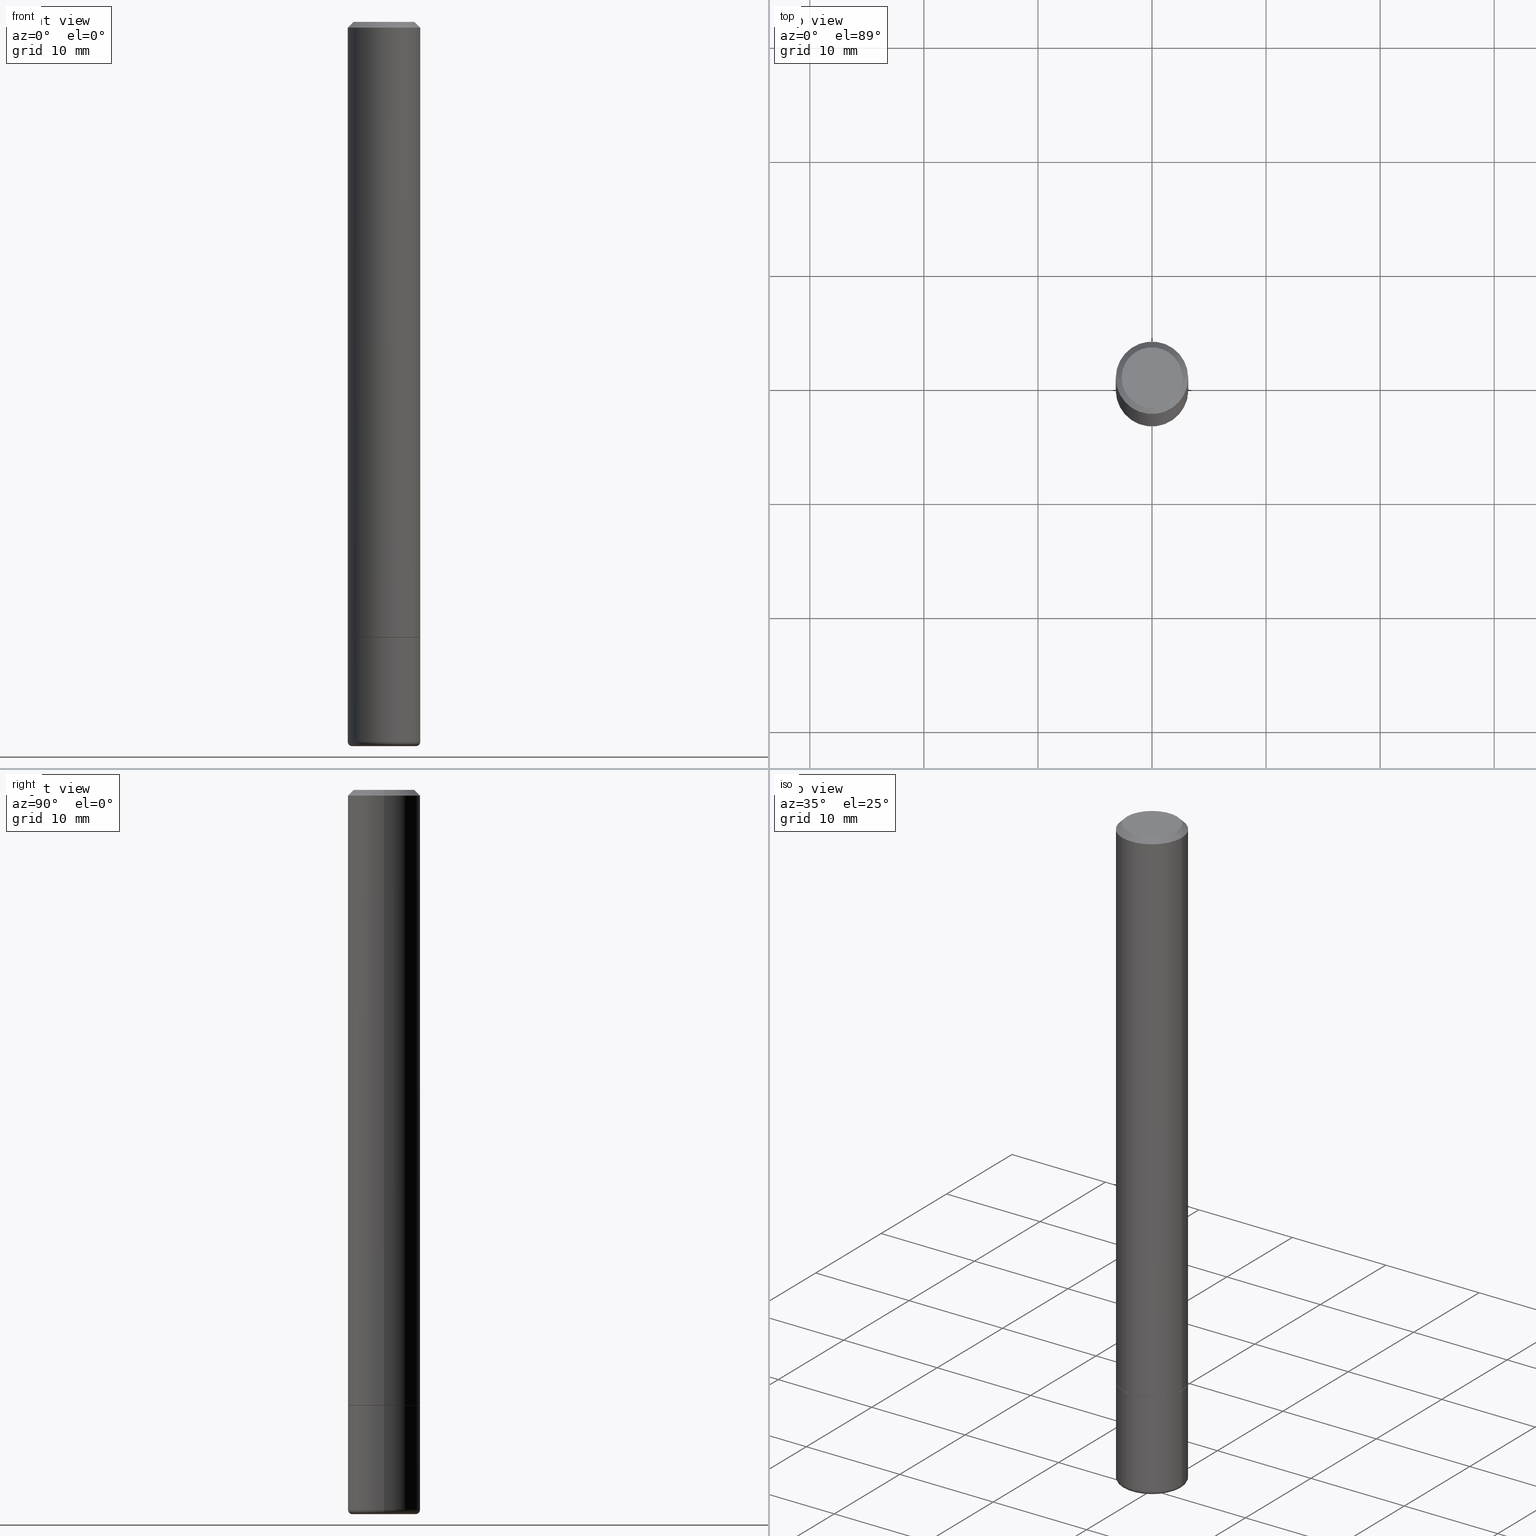
[diagram: canonical four-view strip — front | top / right | iso, engineering-drawing reading convention]
A machine part, canonical four-view strip (front | top / right | iso — engineering-drawing reading convention). The complete STEP part file that produces these views, byte-faithful:
ISO-10303-21;
HEADER;
FILE_DESCRIPTION (( 'STEP AP203' ),
    '1' );
FILE_NAME ('35666.STEP',
    '2022-11-02T20:36:57',
    ( '' ),
    ( '' ),
    'SwSTEP 2.0',
    'SolidWorks 2022',
    '' );
FILE_SCHEMA (( 'CONFIG_CONTROL_DESIGN' ));
ENDSEC;

DATA;
#1 = LINE ( 'NONE', #105, #276 ) ;
#2 = CARTESIAN_POINT ( 'NONE',  ( 4.890937612370295054E-31, -6.982962677686322424E-17, -0.02000000000000009062 ) ) ;
#3 = EDGE_CURVE ( 'NONE', #170, #50, #188, .T. ) ;
#4 = FACE_OUTER_BOUND ( 'NONE', #64, .T. ) ;
#5 = AXIS2_PLACEMENT_3D ( 'NONE', #30, #182, #252 ) ;
#6 = CARTESIAN_POINT ( 'NONE',  ( 0.09653660196752465728, -9.390586274395309019E-15, -2.499883649035179900 ) ) ;
#7 = CC_DESIGN_DATE_AND_TIME_ASSIGNMENT ( #355, #129, ( #475 ) ) ;
#8 = ORIENTED_EDGE ( 'NONE', *, *, #52, .T. ) ;
#9 = DIRECTION ( 'NONE',  ( -0.9993908270190957621, 6.856857904024556470E-15, -0.03489949670250108021 ) ) ;
#10 = CARTESIAN_POINT ( 'NONE',  ( 0.09653660196752465728, -9.390586274395309019E-15, -2.499883649035179900 ) ) ;
#11 = ORIENTED_EDGE ( 'NONE', *, *, #211, .T. ) ;
#12 = DIRECTION ( 'NONE',  ( 1.000000000000000000, -6.982962677686267499E-15, 0.000000000000000000 ) ) ;
#13 = PRODUCT_DEFINITION_SHAPE ( 'NONE', 'NONE',  #475 ) ;
#14 = TOROIDAL_SURFACE ( 'NONE', #199, 0.1100000000000001948, 0.01499999999999986934 ) ;
#15 = AXIS2_PLACEMENT_3D ( 'NONE', #347, #381, #89 ) ;
#16 = ORIENTED_EDGE ( 'NONE', *, *, #336, .T. ) ;
#17 = ORIENTED_EDGE ( 'NONE', *, *, #394, .F. ) ;
#18 = PERSON_AND_ORGANIZATION ( #41, #314 ) ;
#19 = DIRECTION ( 'NONE',  ( -2.445468806185136597E-29, 3.491481338843145583E-15, 1.000000000000000000 ) ) ;
#20 = PERSON_AND_ORGANIZATION_ROLE ( 'design_supplier' ) ;
#21 = CIRCLE ( 'NONE', #436, 0.1249999999999993477 ) ;
#22 = EDGE_LOOP ( 'NONE', ( #412, #219 ) ) ;
#23 = AXIS2_PLACEMENT_3D ( 'NONE', #207, #198, #470 ) ;
#24 = APPROVAL_DATE_TIME ( #26, #255 ) ;
#25 = APPROVAL_PERSON_ORGANIZATION ( #443, #426, #96 ) ;
#26 = DATE_AND_TIME ( #127, #320 ) ;
#27 = ORIENTED_EDGE ( 'NONE', *, *, #78, .T. ) ;
#28 = ORIENTED_EDGE ( 'NONE', *, *, #78, .F. ) ;
#29 = VECTOR ( 'NONE', #360, 39.37007874015748854 ) ;
#30 = CARTESIAN_POINT ( 'NONE',  ( 5.196621213143416389E-29, -7.419397845041685201E-15, -2.125000000000000444 ) ) ;
#31 = CARTESIAN_POINT ( 'NONE',  ( 5.194175744337230786E-29, -7.415906363702842194E-15, -2.124000000000000554 ) ) ;
#32 = VECTOR ( 'NONE', #9, 39.37007874015748143 ) ;
#33 = DIRECTION ( 'NONE',  ( 1.000000000000000000, -6.982962677686266711E-15, 4.883557194083113462E-29 ) ) ;
#34 = CARTESIAN_POINT ( 'NONE',  ( -0.1098691019675246544, -7.961491508637733109E-15, -2.500000000000000000 ) ) ;
#35 = CARTESIAN_POINT ( 'NONE',  ( -0.1249999999999993477, 8.030407079339155047E-16, -0.02000000000000009062 ) ) ;
#36 = LINE ( 'NONE', #185, #266 ) ;
#37 = FACE_OUTER_BOUND ( 'NONE', #390, .T. ) ;
#38 = DIRECTION ( 'NONE',  ( -2.445468806185136597E-29, 3.491481338843145583E-15, 1.000000000000000000 ) ) ;
#39 = AXIS2_PLACEMENT_3D ( 'NONE', #233, #193, #42 ) ;
#40 = CYLINDRICAL_SURFACE ( 'NONE', #231, 0.1249999999999994865 ) ;
#41 = PERSON ( 'UNSPECIFIED', 'UNSPECIFIED', 'UNSPECIFIED', ('UNSPECIFIED'), ('UNSPECIFIED'), ('UNSPECIFIED') ) ;
#42 = DIRECTION ( 'NONE',  ( -1.000000000000000000, 6.982962677686265922E-15, 0.000000000000000000 ) ) ;
#43 = CARTESIAN_POINT ( 'NONE',  ( -0.1249999999999994865, 8.881784197001215839E-16, -6.148668862818606303E-30 ) ) ;
#44 = EDGE_CURVE ( 'NONE', #324, #134, #21, .T. ) ;
#45 = AXIS2_PLACEMENT_3D ( 'NONE', #220, #409, #229 ) ;
#46 = ORIENTED_EDGE ( 'NONE', *, *, #176, .F. ) ;
#47 = CARTESIAN_POINT ( 'NONE',  ( 0.1098691019675246544, -9.482460101173023392E-15, -2.500000000000000000 ) ) ;
#48 = CARTESIAN_POINT ( 'NONE',  ( 5.196621213143416389E-29, -7.419397845041685201E-15, -2.125000000000000444 ) ) ;
#49 = DIRECTION ( 'NONE',  ( -1.000000000000000000, 6.982962677686267499E-15, 0.000000000000000000 ) ) ;
#50 = VERTEX_POINT ( 'NONE', #416 ) ;
#51 =( NAMED_UNIT ( * ) PLANE_ANGLE_UNIT ( ) SI_UNIT ( $, .RADIAN. ) );
#52 = EDGE_CURVE ( 'NONE', #61, #50, #186, .T. ) ;
#53 = ORIENTED_EDGE ( 'NONE', *, *, #328, .F. ) ;
#54 = ORIENTED_EDGE ( 'NONE', *, *, #455, .T. ) ;
#55 = COORDINATED_UNIVERSAL_TIME_OFFSET ( 5, 0, .BEHIND. ) ;
#56 = DIRECTION ( 'NONE',  ( -2.445468806185136597E-29, 3.491481338843145583E-15, 1.000000000000000000 ) ) ;
#57 = CARTESIAN_POINT ( 'NONE',  ( 0.000000000000000000, 0.000000000000000000, 0.000000000000000000 ) ) ;
#58 = ORIENTED_EDGE ( 'NONE', *, *, #243, .T. ) ;
#59 = APPROVAL_ROLE ( '' ) ;
#60 = ORIENTED_EDGE ( 'NONE', *, *, #328, .T. ) ;
#61 = VERTEX_POINT ( 'NONE', #228 ) ;
#62 = AXIS2_PLACEMENT_3D ( 'NONE', #116, #152, #12 ) ;
#63 = COORDINATED_UNIVERSAL_TIME_OFFSET ( 5, 0, .BEHIND. ) ;
#64 = EDGE_LOOP ( 'NONE', ( #330, #281, #93, #17 ) ) ;
#65 = PERSON_AND_ORGANIZATION ( #41, #314 ) ;
#66 = DIRECTION ( 'NONE',  ( 1.000000000000000000, -6.982962677686265922E-15, 4.876176775795935793E-29 ) ) ;
#67 = ORIENTED_EDGE ( 'NONE', *, *, #482, .F. ) ;
#68 = CARTESIAN_POINT ( 'NONE',  ( 5.194175744337230786E-29, -7.415906363702842194E-15, -2.124000000000000554 ) ) ;
#69 = DIRECTION ( 'NONE',  ( -2.445468806185136877E-29, 3.491481338843145188E-15, 1.000000000000000000 ) ) ;
#70 = FACE_OUTER_BOUND ( 'NONE', #130, .T. ) ;
#71 = CONICAL_SURFACE ( 'NONE', #62, 0.1239999999999996244, 0.7853981633974141952 ) ;
#72 = DIRECTION ( 'NONE',  ( 2.445468806185136597E-29, -3.491481338843145583E-15, -1.000000000000000000 ) ) ;
#73 = DIRECTION ( 'NONE',  ( 1.000000000000000000, -6.982962677686266711E-15, 4.876176775795935793E-29 ) ) ;
#74 = ADVANCED_FACE ( 'NONE', ( #37 ), #40, .T. ) ;
#75 = FACE_OUTER_BOUND ( 'NONE', #387, .T. ) ;
#76 = CIRCLE ( 'NONE', #215, 0.1249999999999993477 ) ;
#77 = DIRECTION ( 'NONE',  ( 1.000000000000000000, -6.982962677686267499E-15, 0.000000000000000000 ) ) ;
#78 = EDGE_CURVE ( 'NONE', #481, #170, #112, .T. ) ;
#79 = ORIENTED_EDGE ( 'NONE', *, *, #44, .T. ) ;
#80 = DIRECTION ( 'NONE',  ( -2.445468806185136597E-29, 3.491481338843145583E-15, 1.000000000000000000 ) ) ;
#81 = VECTOR ( 'NONE', #453, 39.37007874015748143 ) ;
#82 = DIRECTION ( 'NONE',  ( -6.982962677686266711E-15, -1.000000000000000000, 3.491481338843145583E-15 ) ) ;
#83 = CIRCLE ( 'NONE', #382, 0.01499999999999987454 ) ;
#84 = LOCAL_TIME ( 16, 36, 57.00000000000000000, #217 ) ;
#85 = ORIENTED_EDGE ( 'NONE', *, *, #3, .F. ) ;
#86 = ORIENTED_EDGE ( 'NONE', *, *, #3, .T. ) ;
#87 = PLANE ( 'NONE',  #260 ) ;
#88 = ORIENTED_EDGE ( 'NONE', *, *, #438, .F. ) ;
#89 = DIRECTION ( 'NONE',  ( 1.000000000000000000, -6.982962677686261977E-15, 0.000000000000000000 ) ) ;
#90 = APPROVAL_DATE_TIME ( #166, #426 ) ;
#91 = EDGE_CURVE ( 'NONE', #155, #324, #372, .T. ) ;
#92 = CIRCLE ( 'NONE', #377, 0.1239999999999996244 ) ;
#93 = ORIENTED_EDGE ( 'NONE', *, *, #272, .T. ) ;
#94 = ORIENTED_EDGE ( 'NONE', *, *, #438, .T. ) ;
#95 = ORIENTED_EDGE ( 'NONE', *, *, #206, .T. ) ;
#96 = APPROVAL_ROLE ( '' ) ;
#97 = COORDINATED_UNIVERSAL_TIME_OFFSET ( 5, 0, .BEHIND. ) ;
#98 = AXIS2_PLACEMENT_3D ( 'NONE', #48, #269, #311 ) ;
#99 = FACE_OUTER_BOUND ( 'NONE', #114, .T. ) ;
#100 = VERTEX_POINT ( 'NONE', #402 ) ;
#101 = DIRECTION ( 'NONE',  ( -2.445468806185136597E-29, 3.491481338843145583E-15, 1.000000000000000000 ) ) ;
#102 = DIRECTION ( 'NONE',  ( 1.000000000000000000, -6.982962677686269077E-15, 0.000000000000000000 ) ) ;
#103 = ORIENTED_EDGE ( 'NONE', *, *, #448, .T. ) ;
#104 = TOROIDAL_SURFACE ( 'NONE', #398, 0.1100000000000001948, 0.01499999999999986934 ) ;
#105 = CARTESIAN_POINT ( 'NONE',  ( 0.1239999999999996244, -8.285285217074779370E-15, -2.125000000000000444 ) ) ;
#106 = CARTESIAN_POINT ( 'NONE',  ( 0.000000000000000000, 0.000000000000000000, 0.000000000000000000 ) ) ;
#107 = ADVANCED_FACE ( 'NONE', ( #451 ), #14, .T. ) ;
#108 = CARTESIAN_POINT ( 'NONE',  ( 1.043851414335219781E-45, -1.490343170380447145E-31, -4.268512490100411279E-17 ) ) ;
#109 = CARTESIAN_POINT ( 'NONE',  ( 0.1100000000000001948, -9.444459015744370548E-15, -2.485000571154037718 ) ) ;
#110 = FACE_OUTER_BOUND ( 'NONE', #284, .T. ) ;
#111 = PRODUCT ( '35666', '35666', '', ( #325 ) ) ;
#112 = LINE ( 'NONE', #221, #484 ) ;
#113 = ORIENTED_EDGE ( 'NONE', *, *, #448, .F. ) ;
#114 = EDGE_LOOP ( 'NONE', ( #399, #16, #192, #316 ) ) ;
#115 = CARTESIAN_POINT ( 'NONE',  ( 1.043851414335219781E-45, -1.490343170380447145E-31, -4.268512490100411279E-17 ) ) ;
#116 = CARTESIAN_POINT ( 'NONE',  ( 5.196621213143416389E-29, -7.419397845041685201E-15, -2.125000000000000444 ) ) ;
#117 = ADVANCED_FACE ( 'NONE', ( #329 ), #133, .F. ) ;
#118 = DIRECTION ( 'NONE',  ( 2.438088387897960049E-29, -3.491481338843145188E-15, -1.000000000000000000 ) ) ;
#119 = ADVANCED_BREP_SHAPE_REPRESENTATION ( '35666', ( #406, #239, #466 ), #430 ) ;
#120 = PERSON_AND_ORGANIZATION ( #41, #314 ) ;
#121 = EDGE_LOOP ( 'NONE', ( #214, #395 ) ) ;
#122 = DIRECTION ( 'NONE',  ( 1.000000000000000000, 0.000000000000000000, 0.000000000000000000 ) ) ;
#123 = UNCERTAINTY_MEASURE_WITH_UNIT (LENGTH_MEASURE( 1.000000000000000082E-05 ), #428, 'distance_accuracy_value', 'NONE');
#124 = PRODUCT_RELATED_PRODUCT_CATEGORY ( 'detail', '', ( #111 ) ) ;
#125 = CONICAL_SURFACE ( 'NONE', #208, 0.1098691019675246544, 1.562069680534929894 ) ;
#126 = AXIS2_PLACEMENT_3D ( 'NONE', #375, #490, #299 ) ;
#127 = CALENDAR_DATE ( 2022, 2, 11 ) ;
#128 = ORIENTED_EDGE ( 'NONE', *, *, #405, .T. ) ;
#129 = DATE_TIME_ROLE ( 'creation_date' ) ;
#130 = EDGE_LOOP ( 'NONE', ( #28, #11, #8, #85 ) ) ;
#131 = CALENDAR_DATE ( 2022, 2, 11 ) ;
#132 = DIRECTION ( 'NONE',  ( -0.7071067811865465735, 2.468850131082246805E-15, -0.7071067811865484609 ) ) ;
#133 = CONICAL_SURFACE ( 'NONE', #419, 0.1098691019675246544, 1.562069680534929894 ) ;
#134 = VERTEX_POINT ( 'NONE', #486 ) ;
#135 = VECTOR ( 'NONE', #184, 39.37007874015748854 ) ;
#136 = APPROVAL_PERSON_ORGANIZATION ( #18, #386, #59 ) ;
#137 = CARTESIAN_POINT ( 'NONE',  ( 0.1249999999999996253, -8.288776698413623955E-15, -2.124000000000000554 ) ) ;
#138 = FACE_OUTER_BOUND ( 'NONE', #348, .T. ) ;
#139 = ADVANCED_FACE ( 'NONE', ( #138 ), #125, .F. ) ;
#140 = DIRECTION ( 'NONE',  ( -2.445468806185136597E-29, 3.491481338843145583E-15, 1.000000000000000000 ) ) ;
#141 = ORIENTED_EDGE ( 'NONE', *, *, #171, .T. ) ;
#142 = CARTESIAN_POINT ( 'NONE',  ( 5.196621213143416389E-29, -7.419397845041685201E-15, -2.125000000000000444 ) ) ;
#143 = AXIS2_PLACEMENT_3D ( 'NONE', #283, #56, #168 ) ;
#144 = CARTESIAN_POINT ( 'NONE',  ( -0.1100000000000001948, -7.894736111862769680E-15, -2.485000571154037718 ) ) ;
#145 = PRODUCT_DEFINITION_FORMATION_WITH_SPECIFIED_SOURCE ( 'ANY', '', #111, .NOT_KNOWN. ) ;
#146 = DIRECTION ( 'NONE',  ( -2.445468806185136877E-29, 3.491481338843145188E-15, 1.000000000000000000 ) ) ;
#147 = VERTEX_POINT ( 'NONE', #162 ) ;
#148 = CARTESIAN_POINT ( 'NONE',  ( 0.1098691019675246544, -9.495915185577995199E-15, -2.500000000000000000 ) ) ;
#149 = CARTESIAN_POINT ( 'NONE',  ( -0.09653660196752465728, -8.054185621315559695E-15, -2.499883649035179900 ) ) ;
#150 = EDGE_CURVE ( 'NONE', #358, #134, #36, .T. ) ;
#151 = ORIENTED_EDGE ( 'NONE', *, *, #246, .F. ) ;
#152 = DIRECTION ( 'NONE',  ( -2.445468806185136597E-29, 3.491481338843145583E-15, 1.000000000000000000 ) ) ;
#153 = CLOSED_SHELL ( 'NONE', ( #226, #74, #489, #297, #169, #456, #423, #413 ) ) ;
#154 = AXIS2_PLACEMENT_3D ( 'NONE', #108, #227, #264 ) ;
#155 = VERTEX_POINT ( 'NONE', #335 ) ;
#156 = PLANE ( 'NONE',  #338 ) ;
#157 = VERTEX_POINT ( 'NONE', #263 ) ;
#158 = DIRECTION ( 'NONE',  ( 2.438088387897960049E-29, -3.491481338843145188E-15, -1.000000000000000000 ) ) ;
#159 = PLANE ( 'NONE',  #98 ) ;
#160 = VECTOR ( 'NONE', #132, 39.37007874015748143 ) ;
#161 = CIRCLE ( 'NONE', #15, 0.09653660196752465728 ) ;
#162 = CARTESIAN_POINT ( 'NONE',  ( 0.1049999999999993577, -8.238720831321533257E-16, -4.268512490099867088E-17 ) ) ;
#163 = ORIENTED_EDGE ( 'NONE', *, *, #171, .F. ) ;
#164 = DESIGN_CONTEXT ( 'detailed design', #213, 'design' ) ;
#165 = ORIENTED_EDGE ( 'NONE', *, *, #206, .F. ) ;
#166 = DATE_AND_TIME ( #439, #210 ) ;
#167 = CARTESIAN_POINT ( 'NONE',  ( 6.076991380109446545E-29, -8.676333121198880578E-15, -2.485000571154037718 ) ) ;
#168 = DIRECTION ( 'NONE',  ( 1.000000000000000000, -6.982962677686269077E-15, 0.000000000000000000 ) ) ;
#169 = ADVANCED_FACE ( 'NONE', ( #340 ), #230, .T. ) ;
#170 = VERTEX_POINT ( 'NONE', #450 ) ;
#171 = EDGE_CURVE ( 'NONE', #147, #134, #368, .T. ) ;
#172 = APPROVAL_STATUS ( 'not_yet_approved' ) ;
#173 = CONICAL_SURFACE ( 'NONE', #23, 0.1249999999999993477, 0.7853981633974469467 ) ;
#174 = ORIENTED_EDGE ( 'NONE', *, *, #246, .T. ) ;
#175 = PERSON_AND_ORGANIZATION_ROLE ( 'design_owner' ) ;
#176 = EDGE_CURVE ( 'NONE', #346, #488, #251, .T. ) ;
#177 = DIRECTION ( 'NONE',  ( -1.000000000000000000, 6.982962677686267499E-15, 0.000000000000000000 ) ) ;
#178 = ORIENTED_EDGE ( 'NONE', *, *, #432, .F. ) ;
#179 = CC_DESIGN_DATE_AND_TIME_ASSIGNMENT ( #440, #317, ( #478 ) ) ;
#180 = DIRECTION ( 'NONE',  ( -2.445468806185136597E-29, 3.491481338843145583E-15, 1.000000000000000000 ) ) ;
#181 = ORIENTED_EDGE ( 'NONE', *, *, #44, .F. ) ;
#182 = DIRECTION ( 'NONE',  ( -2.445468806185136597E-29, 3.491481338843145583E-15, 1.000000000000000000 ) ) ;
#183 = DIRECTION ( 'NONE',  ( -1.000000000000000000, 6.982962677686261977E-15, 0.000000000000000000 ) ) ;
#184 = DIRECTION ( 'NONE',  ( -0.9999619230641714207, 6.952228252019186602E-15, -0.008726535498369011531 ) ) ;
#185 = CARTESIAN_POINT ( 'NONE',  ( 0.1249999999999994865, -8.728703347107796903E-16, 6.095220969744894518E-30 ) ) ;
#186 = LINE ( 'NONE', #408, #81 ) ;
#187 = CARTESIAN_POINT ( 'NONE',  ( 6.113672015462842613E-29, -8.728703347107864943E-15, -2.500000000000000000 ) ) ;
#188 = CIRCLE ( 'NONE', #143, 0.1249999999999996253 ) ;
#189 = AXIS2_PLACEMENT_3D ( 'NONE', #31, #454, #102 ) ;
#190 = CARTESIAN_POINT ( 'NONE',  ( 6.076991380109446545E-29, -8.676333121198880578E-15, -2.485000571154037718 ) ) ;
#191 = CARTESIAN_POINT ( 'NONE',  ( 0.000000000000000000, 0.000000000000000000, 0.000000000000000000 ) ) ;
#192 = ORIENTED_EDGE ( 'NONE', *, *, #389, .F. ) ;
#193 = DIRECTION ( 'NONE',  ( 2.445468806185136597E-29, -3.491481338843145583E-15, -1.000000000000000000 ) ) ;
#194 = EDGE_CURVE ( 'NONE', #279, #61, #258, .T. ) ;
#195 = DIRECTION ( 'NONE',  ( -2.445468806185136877E-29, 3.491481338843145188E-15, 1.000000000000000000 ) ) ;
#196 = CARTESIAN_POINT ( 'NONE',  ( 0.000000000000000000, 0.000000000000000000, 0.000000000000000000 ) ) ;
#197 = EDGE_LOOP ( 'NONE', ( #58, #60, #88, #349 ) ) ;
#198 = DIRECTION ( 'NONE',  ( 2.445468806185136597E-29, -3.491481338843145583E-15, -1.000000000000000000 ) ) ;
#199 = AXIS2_PLACEMENT_3D ( 'NONE', #365, #180, #33 ) ;
#200 = CIRCLE ( 'NONE', #477, 0.1250000000000000278 ) ;
#201 = ORIENTED_EDGE ( 'NONE', *, *, #91, .F. ) ;
#202 = DIRECTION ( 'NONE',  ( -2.445468806185136597E-29, 3.491481338843145583E-15, 1.000000000000000000 ) ) ;
#203 = CC_DESIGN_PERSON_AND_ORGANIZATION_ASSIGNMENT ( #65, #175, ( #111 ) ) ;
#204 = ORIENTED_EDGE ( 'NONE', *, *, #389, .T. ) ;
#205 = CARTESIAN_POINT ( 'NONE',  ( 7.332110811570533898E-16, 0.1049999999999993577, -3.879481030290301102E-16 ) ) ;
#206 = EDGE_CURVE ( 'NONE', #488, #279, #384, .T. ) ;
#207 = CARTESIAN_POINT ( 'NONE',  ( 4.890937612370295054E-31, -6.982962677686322424E-17, -0.02000000000000009062 ) ) ;
#208 = AXIS2_PLACEMENT_3D ( 'NONE', #295, #407, #49 ) ;
#209 = CIRCLE ( 'NONE', #291, 0.1049999999999993577 ) ;
#210 = LOCAL_TIME ( 16, 36, 57.00000000000000000, #63 ) ;
#211 = EDGE_CURVE ( 'NONE', #481, #61, #304, .T. ) ;
#212 = CALENDAR_DATE ( 2022, 2, 11 ) ;
#213 = APPLICATION_CONTEXT ( 'configuration controlled 3d designs of mechanical parts and assemblies' ) ;
#214 = ORIENTED_EDGE ( 'NONE', *, *, #429, .F. ) ;
#215 = AXIS2_PLACEMENT_3D ( 'NONE', #303, #202, #385 ) ;
#216 = CC_DESIGN_APPROVAL ( #426, ( #145 ) ) ;
#217 = COORDINATED_UNIVERSAL_TIME_OFFSET ( 5, 0, .BEHIND. ) ;
#218 = APPLICATION_CONTEXT ( 'configuration controlled 3d designs of mechanical parts and assemblies' ) ;
#219 = ORIENTED_EDGE ( 'NONE', *, *, #444, .T. ) ;
#220 = CARTESIAN_POINT ( 'NONE',  ( 6.113672015462842613E-29, -8.728703347107864943E-15, -2.500000000000000000 ) ) ;
#221 = CARTESIAN_POINT ( 'NONE',  ( -0.1249999999999998335, 8.881784197001240490E-16, -6.148668862818623819E-30 ) ) ;
#222 = AXIS2_PLACEMENT_3D ( 'NONE', #106, #417, #73 ) ;
#223 = LINE ( 'NONE', #34, #135 ) ;
#224 = CARTESIAN_POINT ( 'NONE',  ( 0.1249999999999993477, -9.273918764983002075E-16, -0.02000000000000009062 ) ) ;
#225 = DIRECTION ( 'NONE',  ( 1.000000000000000000, -6.982962677686265922E-15, 0.000000000000000000 ) ) ;
#226 = ADVANCED_FACE ( 'NONE', ( #99 ), #492, .T. ) ;
#227 = DIRECTION ( 'NONE',  ( -2.445468806185136597E-29, 3.491481338843145583E-15, 1.000000000000000000 ) ) ;
#228 = CARTESIAN_POINT ( 'NONE',  ( 0.1250000000000000278, -9.549203455909665495E-15, -2.485000571154037718 ) ) ;
#229 = DIRECTION ( 'NONE',  ( 1.000000000000000000, -6.982962677686259611E-15, 0.000000000000000000 ) ) ;
#230 = CYLINDRICAL_SURFACE ( 'NONE', #391, 0.1249999999999994865 ) ;
#231 = AXIS2_PLACEMENT_3D ( 'NONE', #191, #341, #422 ) ;
#232 = CIRCLE ( 'NONE', #300, 0.1249999999999996253 ) ;
#233 = CARTESIAN_POINT ( 'NONE',  ( 4.890937612370295054E-31, -6.982962677686322424E-17, -0.02000000000000009062 ) ) ;
#234 = DIRECTION ( 'NONE',  ( 1.000000000000000000, -6.982962677686269077E-15, 0.000000000000000000 ) ) ;
#235 = LENGTH_MEASURE_WITH_UNIT ( LENGTH_MEASURE( 0.02539999999999999897 ), #383 );
#236 = CARTESIAN_POINT ( 'NONE',  ( 6.076991380109446545E-29, -8.676333121198880578E-15, -2.485000571154037718 ) ) ;
#237 = CIRCLE ( 'NONE', #248, 0.1239999999999996244 ) ;
#238 = DIRECTION ( 'NONE',  ( 1.000000000000000000, -6.982962677686326664E-15, 0.000000000000000000 ) ) ;
#239 = MANIFOLD_SOLID_BREP ( 'Body-Move/Copy2[2]', #153 ) ;
#240 = ADVANCED_FACE ( 'NONE', ( #75 ), #356, .F. ) ;
#241 = LINE ( 'NONE', #312, #32 ) ;
#242 = ORIENTED_EDGE ( 'NONE', *, *, #176, .T. ) ;
#243 = EDGE_CURVE ( 'NONE', #279, #326, #370, .T. ) ;
#244 = AXIS2_PLACEMENT_3D ( 'NONE', #109, #82, #238 ) ;
#245 = VECTOR ( 'NONE', #195, 39.37007874015748143 ) ;
#246 = EDGE_CURVE ( 'NONE', #326, #279, #286, .T. ) ;
#247 = APPROVAL_STATUS ( 'not_yet_approved' ) ;
#248 = AXIS2_PLACEMENT_3D ( 'NONE', #142, #378, #418 ) ;
#249 = EDGE_CURVE ( 'NONE', #155, #147, #393, .T. ) ;
#250 = SECURITY_CLASSIFICATION_LEVEL ( 'unclassified' ) ;
#251 = LINE ( 'NONE', #10, #327 ) ;
#252 = DIRECTION ( 'NONE',  ( 1.000000000000000000, -6.982962677686267499E-15, 0.000000000000000000 ) ) ;
#253 = CYLINDRICAL_SURFACE ( 'NONE', #465, 0.1249999999999998335 ) ;
#254 = CARTESIAN_POINT ( 'NONE',  ( 6.113672015462842613E-29, -8.728703347107864943E-15, -2.500000000000000000 ) ) ;
#255 = APPROVAL ( #172, 'UNSPECIFIED' ) ;
#256 = CARTESIAN_POINT ( 'NONE',  ( 6.105155991593430023E-29, -8.716508951805504118E-15, -2.496512516610355448 ) ) ;
#257 = ADVANCED_FACE ( 'NONE', ( #331 ), #344, .F. ) ;
#258 = CIRCLE ( 'NONE', #244, 0.01499999999999987454 ) ;
#259 = ORIENTED_EDGE ( 'NONE', *, *, #150, .T. ) ;
#260 = AXIS2_PLACEMENT_3D ( 'NONE', #306, #158, #275 ) ;
#261 = CARTESIAN_POINT ( 'NONE',  ( 0.000000000000000000, 0.000000000000000000, 0.000000000000000000 ) ) ;
#262 = DIRECTION ( 'NONE',  ( 0.7071067811865232589, -2.468850131082003836E-15, 0.7071067811865715536 ) ) ;
#263 = CARTESIAN_POINT ( 'NONE',  ( 0.1239999999999996244, -8.285285217074779370E-15, -2.125000000000000444 ) ) ;
#264 = DIRECTION ( 'NONE',  ( 1.000000000000000000, -6.982962677686267499E-15, 4.874400871621268483E-29 ) ) ;
#265 = CC_DESIGN_PERSON_AND_ORGANIZATION_ASSIGNMENT ( #120, #437, ( #478 ) ) ;
#266 = VECTOR ( 'NONE', #146, 39.37007874015748143 ) ;
#267 = AXIS2_PLACEMENT_3D ( 'NONE', #415, #72, #183 ) ;
#268 = EDGE_CURVE ( 'NONE', #363, #157, #237, .T. ) ;
#269 = DIRECTION ( 'NONE',  ( -2.438088387897960049E-29, 3.491481338843145188E-15, 1.000000000000000000 ) ) ;
#270 = FACE_OUTER_BOUND ( 'NONE', #380, .T. ) ;
#271 = ORIENTED_EDGE ( 'NONE', *, *, #150, .F. ) ;
#272 = EDGE_CURVE ( 'NONE', #157, #358, #1, .T. ) ;
#273 = DIMENSIONAL_EXPONENTS ( 1.000000000000000000, 0.000000000000000000, 0.000000000000000000, 0.000000000000000000, 0.000000000000000000, 0.000000000000000000, 0.000000000000000000 ) ;
#274 = ORIENTED_EDGE ( 'NONE', *, *, #482, .T. ) ;
#275 = DIRECTION ( 'NONE',  ( -1.000000000000000000, 6.982962677686265922E-15, -4.876176775795935793E-29 ) ) ;
#276 = VECTOR ( 'NONE', #262, 39.37007874015748854 ) ;
#277 = LOCAL_TIME ( 16, 36, 57.00000000000000000, #361 ) ;
#278 = ORIENTED_EDGE ( 'NONE', *, *, #211, .F. ) ;
#279 = VERTEX_POINT ( 'NONE', #148 ) ;
#280 = DIRECTION ( 'NONE',  ( -1.000000000000000000, 6.982962677686265922E-15, -4.876176775795935793E-29 ) ) ;
#281 = ORIENTED_EDGE ( 'NONE', *, *, #268, .T. ) ;
#282 = PERSON_AND_ORGANIZATION_ROLE ( 'creator' ) ;
#283 = CARTESIAN_POINT ( 'NONE',  ( 5.196621213143416389E-29, -7.419397845041685201E-15, -2.125000000000000444 ) ) ;
#284 = EDGE_LOOP ( 'NONE', ( #322, #86 ) ) ;
#285 = PERSON_AND_ORGANIZATION_ROLE ( 'creator' ) ;
#286 = CIRCLE ( 'NONE', #411, 0.1098691019675246544 ) ;
#287 = CC_DESIGN_APPROVAL ( #255, ( #478 ) ) ;
#288 = ORIENTED_EDGE ( 'NONE', *, *, #441, .F. ) ;
#289 = PERSON_AND_ORGANIZATION ( #41, #314 ) ;
#290 = APPROVAL_DATE_TIME ( #392, #386 ) ;
#291 = AXIS2_PLACEMENT_3D ( 'NONE', #115, #379, #469 ) ;
#292 = CARTESIAN_POINT ( 'NONE',  ( -0.1249999999999993477, 8.030407079339155047E-16, -0.02000000000000009062 ) ) ;
#293 = ORIENTED_EDGE ( 'NONE', *, *, #455, .F. ) ;
#294 = FACE_OUTER_BOUND ( 'NONE', #435, .T. ) ;
#295 = CARTESIAN_POINT ( 'NONE',  ( 6.113672015462842613E-29, -8.728703347107864943E-15, -2.500000000000000000 ) ) ;
#296 = CYLINDRICAL_SURFACE ( 'NONE', #222, 0.1249999999999998335 ) ;
#297 = ADVANCED_FACE ( 'NONE', ( #294 ), #445, .T. ) ;
#298 = ORIENTED_EDGE ( 'NONE', *, *, #52, .F. ) ;
#299 = DIRECTION ( 'NONE',  ( -1.000000000000000000, 6.982962677686261977E-15, 0.000000000000000000 ) ) ;
#300 = AXIS2_PLACEMENT_3D ( 'NONE', #68, #140, #339 ) ;
#301 = DIRECTION ( 'NONE',  ( -0.7071067811865232589, 7.493145998870265808E-15, 0.7071067811865715536 ) ) ;
#302 = LINE ( 'NONE', #487, #485 ) ;
#303 = CARTESIAN_POINT ( 'NONE',  ( 4.890937612370295054E-31, -6.982962677686322424E-17, -0.02000000000000009062 ) ) ;
#304 = CIRCLE ( 'NONE', #369, 0.1250000000000000278 ) ;
#305 = CIRCLE ( 'NONE', #313, 0.09653660196752465728 ) ;
#306 = CARTESIAN_POINT ( 'NONE',  ( 8.728703347108324454E-16, 0.1249999999999922007, -2.125000000000000888 ) ) ;
#307 = CC_DESIGN_PERSON_AND_ORGANIZATION_ASSIGNMENT ( #289, #282, ( #145 ) ) ;
#308 = ORIENTED_EDGE ( 'NONE', *, *, #405, .F. ) ;
#309 = DIRECTION ( 'NONE',  ( 1.000000000000000000, -6.982962677686269077E-15, 0.000000000000000000 ) ) ;
#310 = EDGE_LOOP ( 'NONE', ( #293, #373, #259, #181 ) ) ;
#311 = DIRECTION ( 'NONE',  ( 1.000000000000000000, -6.982962677686265922E-15, 4.876176775795935793E-29 ) ) ;
#312 = CARTESIAN_POINT ( 'NONE',  ( -0.09653660196752465728, -8.054185621315559695E-15, -2.499883649035179900 ) ) ;
#313 = AXIS2_PLACEMENT_3D ( 'NONE', #333, #467, #343 ) ;
#314 = ORGANIZATION ( 'UNSPECIFIED', 'UNSPECIFIED', '' ) ;
#315 = CALENDAR_DATE ( 2022, 2, 11 ) ;
#316 = ORIENTED_EDGE ( 'NONE', *, *, #272, .F. ) ;
#317 = DATE_TIME_ROLE ( 'classification_date' ) ;
#318 = DIRECTION ( 'NONE',  ( 1.000000000000000000, -6.982962677686269077E-15, 0.000000000000000000 ) ) ;
#319 = CIRCLE ( 'NONE', #189, 0.1249999999999996253 ) ;
#320 = LOCAL_TIME ( 16, 36, 57.00000000000000000, #97 ) ;
#321 = ADVANCED_FACE ( 'NONE', ( #70 ), #253, .T. ) ;
#322 = ORIENTED_EDGE ( 'NONE', *, *, #441, .T. ) ;
#323 = DIRECTION ( 'NONE',  ( 0.000000000000000000, 0.000000000000000000, 1.000000000000000000 ) ) ;
#324 = VERTEX_POINT ( 'NONE', #35 ) ;
#325 = MECHANICAL_CONTEXT ( 'NONE', #218, 'mechanical' ) ;
#326 = VERTEX_POINT ( 'NONE', #337 ) ;
#327 = VECTOR ( 'NONE', #464, 39.37007874015748143 ) ;
#328 = EDGE_CURVE ( 'NONE', #326, #481, #83, .T. ) ;
#329 = FACE_OUTER_BOUND ( 'NONE', #424, .T. ) ;
#330 = ORIENTED_EDGE ( 'NONE', *, *, #336, .F. ) ;
#331 = FACE_OUTER_BOUND ( 'NONE', #353, .T. ) ;
#332 = EDGE_LOOP ( 'NONE', ( #53, #174, #362, #278 ) ) ;
#333 = CARTESIAN_POINT ( 'NONE',  ( 6.113387482807804113E-29, -8.728297109885438444E-15, -2.499883649035179900 ) ) ;
#334 = DIRECTION ( 'NONE',  ( -2.445468806185136597E-29, 3.491481338843145583E-15, 1.000000000000000000 ) ) ;
#335 = CARTESIAN_POINT ( 'NONE',  ( -0.1049999999999993577, 7.681258945454844472E-16, -4.268512490100935748E-17 ) ) ;
#336 = EDGE_CURVE ( 'NONE', #363, #100, #302, .T. ) ;
#337 = CARTESIAN_POINT ( 'NONE',  ( -0.1098691019675246544, -7.868095562865759113E-15, -2.500000000000000000 ) ) ;
#338 = AXIS2_PLACEMENT_3D ( 'NONE', #205, #118, #280 ) ;
#339 = DIRECTION ( 'NONE',  ( 1.000000000000000000, -6.982962677686269077E-15, 0.000000000000000000 ) ) ;
#340 = FACE_OUTER_BOUND ( 'NONE', #310, .T. ) ;
#341 = DIRECTION ( 'NONE',  ( -2.445468806185136597E-29, 3.491481338843145583E-15, 1.000000000000000000 ) ) ;
#342 = DIRECTION ( 'NONE',  ( -1.000000000000000000, 7.105427357600985293E-15, 0.000000000000000000 ) ) ;
#343 = DIRECTION ( 'NONE',  ( 1.000000000000000000, -6.982962677686261977E-15, 0.000000000000000000 ) ) ;
#344 = CONICAL_SURFACE ( 'NONE', #126, 0.09653660196752465728, 1.535889741755009918 ) ;
#345 = DIRECTION ( 'NONE',  ( -2.445468806185136597E-29, 3.491481338843145583E-15, 1.000000000000000000 ) ) ;
#346 = VERTEX_POINT ( 'NONE', #256 ) ;
#347 = CARTESIAN_POINT ( 'NONE',  ( 6.113387482807804113E-29, -8.728297109885438444E-15, -2.499883649035179900 ) ) ;
#348 = EDGE_LOOP ( 'NONE', ( #165, #403, #472, #442 ) ) ;
#349 = ORIENTED_EDGE ( 'NONE', *, *, #194, .F. ) ;
#350 = CARTESIAN_POINT ( 'NONE',  ( 5.196621213143416389E-29, -7.419397845041685201E-15, -2.125000000000000444 ) ) ;
#351 = CC_DESIGN_PERSON_AND_ORGANIZATION_ASSIGNMENT ( #434, #285, ( #475 ) ) ;
#352 = ORIENTED_EDGE ( 'NONE', *, *, #400, .F. ) ;
#353 = EDGE_LOOP ( 'NONE', ( #46, #274, #178 ) ) ;
#354 = CLOSED_SHELL ( 'NONE', ( #117, #107, #371, #240, #257, #468, #321, #376, #139 ) ) ;
#355 = DATE_AND_TIME ( #315, #277 ) ;
#356 = CONICAL_SURFACE ( 'NONE', #267, 0.09653660196752465728, 1.535889741755009918 ) ;
#357 = CC_DESIGN_SECURITY_CLASSIFICATION ( #478, ( #145 ) ) ;
#358 = VERTEX_POINT ( 'NONE', #137 ) ;
#359 = ORIENTED_EDGE ( 'NONE', *, *, #91, .T. ) ;
#360 = DIRECTION ( 'NONE',  ( 0.9999619230641714207, -6.890705306874825328E-15, -0.008726535498369011531 ) ) ;
#361 = COORDINATED_UNIVERSAL_TIME_OFFSET ( 5, 0, .BEHIND. ) ;
#362 = ORIENTED_EDGE ( 'NONE', *, *, #194, .T. ) ;
#363 = VERTEX_POINT ( 'NONE', #460 ) ;
#364 = SHAPE_DEFINITION_REPRESENTATION ( #13, #119 ) ;
#365 = CARTESIAN_POINT ( 'NONE',  ( 6.076991380109446545E-29, -8.676333121198880578E-15, -2.485000571154037718 ) ) ;
#366 = ORIENTED_EDGE ( 'NONE', *, *, #249, .F. ) ;
#367 = DIRECTION ( 'NONE',  ( 1.000000000000000000, -6.982962677686266711E-15, 4.876176775795935793E-29 ) ) ;
#368 = LINE ( 'NONE', #224, #410 ) ;
#369 = AXIS2_PLACEMENT_3D ( 'NONE', #167, #19, #318 ) ;
#370 = CIRCLE ( 'NONE', #45, 0.1098691019675246544 ) ;
#371 = ADVANCED_FACE ( 'NONE', ( #461 ), #296, .T. ) ;
#372 = LINE ( 'NONE', #292, #160 ) ;
#373 = ORIENTED_EDGE ( 'NONE', *, *, #394, .T. ) ;
#374 = FACE_OUTER_BOUND ( 'NONE', #332, .T. ) ;
#375 = CARTESIAN_POINT ( 'NONE',  ( 6.113387482807804113E-29, -8.728297109885438444E-15, -2.499883649035179900 ) ) ;
#376 = ADVANCED_FACE ( 'NONE', ( #374 ), #104, .T. ) ;
#377 = AXIS2_PLACEMENT_3D ( 'NONE', #433, #463, #77 ) ;
#378 = DIRECTION ( 'NONE',  ( -2.445468806185136597E-29, 3.491481338843145583E-15, 1.000000000000000000 ) ) ;
#379 = DIRECTION ( 'NONE',  ( -2.445468806185136597E-29, 3.491481338843145583E-15, 1.000000000000000000 ) ) ;
#380 = EDGE_LOOP ( 'NONE', ( #396, #141, #103, #201 ) ) ;
#381 = DIRECTION ( 'NONE',  ( -2.445468806185136597E-29, 3.491481338843145583E-15, 1.000000000000000000 ) ) ;
#382 = AXIS2_PLACEMENT_3D ( 'NONE', #144, #449, #342 ) ;
#383 =( LENGTH_UNIT ( ) NAMED_UNIT ( * ) SI_UNIT ( $, .METRE. ) );
#384 = LINE ( 'NONE', #47, #29 ) ;
#385 = DIRECTION ( 'NONE',  ( 1.000000000000000000, -6.982962677686265922E-15, 0.000000000000000000 ) ) ;
#386 = APPROVAL ( #247, 'UNSPECIFIED' ) ;
#387 = EDGE_LOOP ( 'NONE', ( #67, #242, #308 ) ) ;
#388 = FACE_OUTER_BOUND ( 'NONE', #121, .T. ) ;
#389 = EDGE_CURVE ( 'NONE', #358, #100, #232, .T. ) ;
#390 = EDGE_LOOP ( 'NONE', ( #204, #54, #113, #271 ) ) ;
#391 = AXIS2_PLACEMENT_3D ( 'NONE', #196, #462, #66 ) ;
#392 = DATE_AND_TIME ( #131, #421 ) ;
#393 = CIRCLE ( 'NONE', #154, 0.1049999999999993577 ) ;
#394 = EDGE_CURVE ( 'NONE', #100, #358, #319, .T. ) ;
#395 = ORIENTED_EDGE ( 'NONE', *, *, #268, .F. ) ;
#396 = ORIENTED_EDGE ( 'NONE', *, *, #444, .F. ) ;
#397 = APPLICATION_PROTOCOL_DEFINITION ( 'international standard', 'config_control_design', 1994, #218 ) ;
#398 = AXIS2_PLACEMENT_3D ( 'NONE', #190, #101, #404 ) ;
#399 = ORIENTED_EDGE ( 'NONE', *, *, #429, .T. ) ;
#400 = EDGE_CURVE ( 'NONE', #427, #326, #223, .T. ) ;
#401 = PERSON_AND_ORGANIZATION ( #41, #314 ) ;
#402 = CARTESIAN_POINT ( 'NONE',  ( -0.1249999999999996253, -2.854689575539726725E-15, -2.124000000000000554 ) ) ;
#403 = ORIENTED_EDGE ( 'NONE', *, *, #432, .T. ) ;
#404 = DIRECTION ( 'NONE',  ( 1.000000000000000000, -6.982962677686266711E-15, 4.883557194083113462E-29 ) ) ;
#405 = EDGE_CURVE ( 'NONE', #427, #488, #305, .T. ) ;
#406 = MANIFOLD_SOLID_BREP ( 'Body-Move/Copy2[1]', #354 ) ;
#407 = DIRECTION ( 'NONE',  ( 2.445468806185136597E-29, -3.491481338843145583E-15, -1.000000000000000000 ) ) ;
#408 = CARTESIAN_POINT ( 'NONE',  ( 0.1249999999999998335, -8.728703347107821555E-16, 6.095220969744911333E-30 ) ) ;
#409 = DIRECTION ( 'NONE',  ( -2.445468806185136597E-29, 3.491481338843145583E-15, 1.000000000000000000 ) ) ;
#410 = VECTOR ( 'NONE', #479, 39.37007874015748143 ) ;
#411 = AXIS2_PLACEMENT_3D ( 'NONE', #187, #491, #457 ) ;
#412 = ORIENTED_EDGE ( 'NONE', *, *, #249, .T. ) ;
#413 = ADVANCED_FACE ( 'NONE', ( #471 ), #156, .F. ) ;
#414 = CC_DESIGN_PERSON_AND_ORGANIZATION_ASSIGNMENT ( #401, #20, ( #145 ) ) ;
#415 = CARTESIAN_POINT ( 'NONE',  ( 6.113387482807804113E-29, -8.728297109885438444E-15, -2.499883649035179900 ) ) ;
#416 = CARTESIAN_POINT ( 'NONE',  ( 0.1249999999999996253, -8.292268179752466962E-15, -2.125000000000000444 ) ) ;
#417 = DIRECTION ( 'NONE',  ( -2.445468806185136597E-29, 3.491481338843145583E-15, 1.000000000000000000 ) ) ;
#418 = DIRECTION ( 'NONE',  ( 1.000000000000000000, -6.982962677686267499E-15, 0.000000000000000000 ) ) ;
#419 = AXIS2_PLACEMENT_3D ( 'NONE', #254, #447, #177 ) ;
#420 = CIRCLE ( 'NONE', #458, 0.1249999999999996253 ) ;
#421 = LOCAL_TIME ( 16, 36, 57.00000000000000000, #55 ) ;
#422 = DIRECTION ( 'NONE',  ( 1.000000000000000000, -6.982962677686265922E-15, 4.876176775795935793E-29 ) ) ;
#423 = ADVANCED_FACE ( 'NONE', ( #388 ), #159, .F. ) ;
#424 = EDGE_LOOP ( 'NONE', ( #128, #95, #151, #352 ) ) ;
#425 = LINE ( 'NONE', #43, #245 ) ;
#426 = APPROVAL ( #473, 'UNSPECIFIED' ) ;
#427 = VERTEX_POINT ( 'NONE', #149 ) ;
#428 =( CONVERSION_BASED_UNIT ( 'INCH', #235 ) LENGTH_UNIT ( ) NAMED_UNIT ( #273 ) );
#429 = EDGE_CURVE ( 'NONE', #157, #363, #92, .T. ) ;
#430 =( GEOMETRIC_REPRESENTATION_CONTEXT ( 3 ) GLOBAL_UNCERTAINTY_ASSIGNED_CONTEXT ( ( #123 ) ) GLOBAL_UNIT_ASSIGNED_CONTEXT ( ( #428, #51, #483 ) ) REPRESENTATION_CONTEXT ( 'NONE', 'WORKASPACE' ) );
#431 = CARTESIAN_POINT ( 'NONE',  ( -0.1250000000000000278, -7.159687063420157657E-15, -2.485000571154037718 ) ) ;
#432 = EDGE_CURVE ( 'NONE', #488, #427, #161, .T. ) ;
#433 = CARTESIAN_POINT ( 'NONE',  ( 5.196621213143416389E-29, -7.419397845041685201E-15, -2.125000000000000444 ) ) ;
#434 = PERSON_AND_ORGANIZATION ( #41, #314 ) ;
#435 = EDGE_LOOP ( 'NONE', ( #163, #366, #359, #79 ) ) ;
#436 = AXIS2_PLACEMENT_3D ( 'NONE', #2, #334, #225 ) ;
#437 = PERSON_AND_ORGANIZATION_ROLE ( 'classification_officer' ) ;
#438 = EDGE_CURVE ( 'NONE', #61, #481, #200, .T. ) ;
#439 = CALENDAR_DATE ( 2022, 2, 11 ) ;
#440 = DATE_AND_TIME ( #212, #84 ) ;
#441 = EDGE_CURVE ( 'NONE', #50, #170, #420, .T. ) ;
#442 = ORIENTED_EDGE ( 'NONE', *, *, #243, .F. ) ;
#443 = PERSON_AND_ORGANIZATION ( #41, #314 ) ;
#444 = EDGE_CURVE ( 'NONE', #147, #155, #209, .T. ) ;
#445 = CONICAL_SURFACE ( 'NONE', #39, 0.1249999999999993477, 0.7853981633974469467 ) ;
#446 = APPROVAL_PERSON_ORGANIZATION ( #474, #255, #476 ) ;
#447 = DIRECTION ( 'NONE',  ( 2.445468806185136597E-29, -3.491481338843145583E-15, -1.000000000000000000 ) ) ;
#448 = EDGE_CURVE ( 'NONE', #134, #324, #76, .T. ) ;
#449 = DIRECTION ( 'NONE',  ( 7.105427357601001859E-15, 1.000000000000000000, -3.491481338843145583E-15 ) ) ;
#450 = CARTESIAN_POINT ( 'NONE',  ( -0.1249999999999996253, -7.159687063420159235E-15, -2.125000000000000444 ) ) ;
#451 = FACE_OUTER_BOUND ( 'NONE', #197, .T. ) ;
#452 = EDGE_LOOP ( 'NONE', ( #94, #27, #288, #298 ) ) ;
#453 = DIRECTION ( 'NONE',  ( -2.445468806185136877E-29, 3.491481338843145188E-15, 1.000000000000000000 ) ) ;
#454 = DIRECTION ( 'NONE',  ( -2.445468806185136597E-29, 3.491481338843145583E-15, 1.000000000000000000 ) ) ;
#455 = EDGE_CURVE ( 'NONE', #100, #324, #425, .T. ) ;
#456 = ADVANCED_FACE ( 'NONE', ( #4 ), #71, .T. ) ;
#457 = DIRECTION ( 'NONE',  ( 1.000000000000000000, -6.982962677686259611E-15, 0.000000000000000000 ) ) ;
#458 = AXIS2_PLACEMENT_3D ( 'NONE', #350, #80, #234 ) ;
#459 = CC_DESIGN_APPROVAL ( #386, ( #475 ) ) ;
#460 = CARTESIAN_POINT ( 'NONE',  ( -0.1239999999999996244, -6.533026398350942519E-15, -2.125000000000000444 ) ) ;
#461 = FACE_OUTER_BOUND ( 'NONE', #452, .T. ) ;
#462 = DIRECTION ( 'NONE',  ( -2.445468806185136597E-29, 3.491481338843145583E-15, 1.000000000000000000 ) ) ;
#463 = DIRECTION ( 'NONE',  ( -2.445468806185136597E-29, 3.491481338843145583E-15, 1.000000000000000000 ) ) ;
#464 = DIRECTION ( 'NONE',  ( 0.9993908270190957621, -6.978169709227541488E-15, -0.03489949670250108021 ) ) ;
#465 = AXIS2_PLACEMENT_3D ( 'NONE', #261, #38, #367 ) ;
#466 = AXIS2_PLACEMENT_3D ( 'NONE', #57, #323, #122 ) ;
#467 = DIRECTION ( 'NONE',  ( -2.445468806185136597E-29, 3.491481338843145583E-15, 1.000000000000000000 ) ) ;
#468 = ADVANCED_FACE ( 'NONE', ( #110 ), #87, .F. ) ;
#469 = DIRECTION ( 'NONE',  ( 1.000000000000000000, -6.982962677686267499E-15, 4.874400871621268483E-29 ) ) ;
#470 = DIRECTION ( 'NONE',  ( -1.000000000000000000, 6.982962677686265922E-15, 0.000000000000000000 ) ) ;
#471 = FACE_OUTER_BOUND ( 'NONE', #22, .T. ) ;
#472 = ORIENTED_EDGE ( 'NONE', *, *, #400, .T. ) ;
#473 = APPROVAL_STATUS ( 'not_yet_approved' ) ;
#474 = PERSON_AND_ORGANIZATION ( #41, #314 ) ;
#475 = PRODUCT_DEFINITION ( 'UNKNOWN', '', #145, #164 ) ;
#476 = APPROVAL_ROLE ( '' ) ;
#477 = AXIS2_PLACEMENT_3D ( 'NONE', #236, #345, #309 ) ;
#478 = SECURITY_CLASSIFICATION ( '', '', #250 ) ;
#479 = DIRECTION ( 'NONE',  ( 0.7071067811865465735, -7.319954787623252890E-15, -0.7071067811865484609 ) ) ;
#480 = APPLICATION_PROTOCOL_DEFINITION ( 'international standard', 'config_control_design', 1994, #213 ) ;
#481 = VERTEX_POINT ( 'NONE', #431 ) ;
#482 = EDGE_CURVE ( 'NONE', #346, #427, #241, .T. ) ;
#483 =( NAMED_UNIT ( * ) SI_UNIT ( $, .STERADIAN. ) SOLID_ANGLE_UNIT ( ) );
#484 = VECTOR ( 'NONE', #69, 39.37007874015748143 ) ;
#485 = VECTOR ( 'NONE', #301, 39.37007874015748854 ) ;
#486 = CARTESIAN_POINT ( 'NONE',  ( 0.1249999999999993477, -9.273918764983002075E-16, -0.02000000000000009062 ) ) ;
#487 = CARTESIAN_POINT ( 'NONE',  ( -0.1239999999999996244, -6.538324852699164133E-15, -2.125000000000000444 ) ) ;
#488 = VERTEX_POINT ( 'NONE', #6 ) ;
#489 = ADVANCED_FACE ( 'NONE', ( #270 ), #173, .T. ) ;
#490 = DIRECTION ( 'NONE',  ( 2.445468806185136597E-29, -3.491481338843145583E-15, -1.000000000000000000 ) ) ;
#491 = DIRECTION ( 'NONE',  ( -2.445468806185136597E-29, 3.491481338843145583E-15, 1.000000000000000000 ) ) ;
#492 = CONICAL_SURFACE ( 'NONE', #5, 0.1239999999999996244, 0.7853981633974141952 ) ;
ENDSEC;
END-ISO-10303-21;
